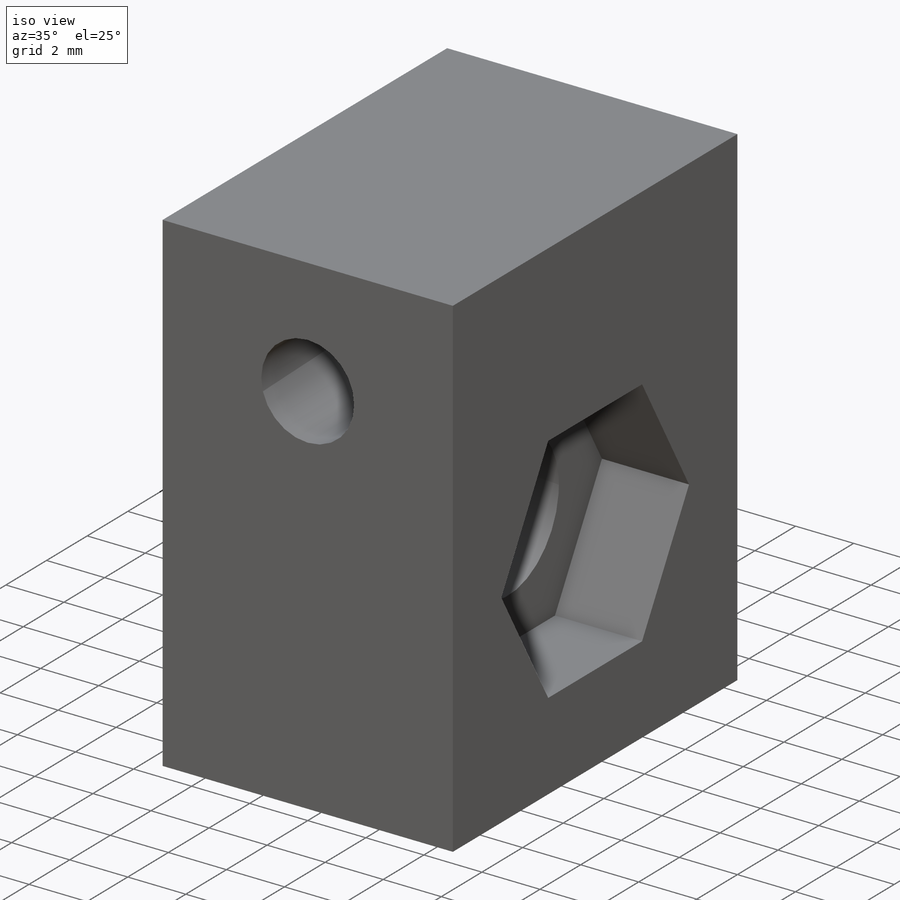
[diagram: iso view]
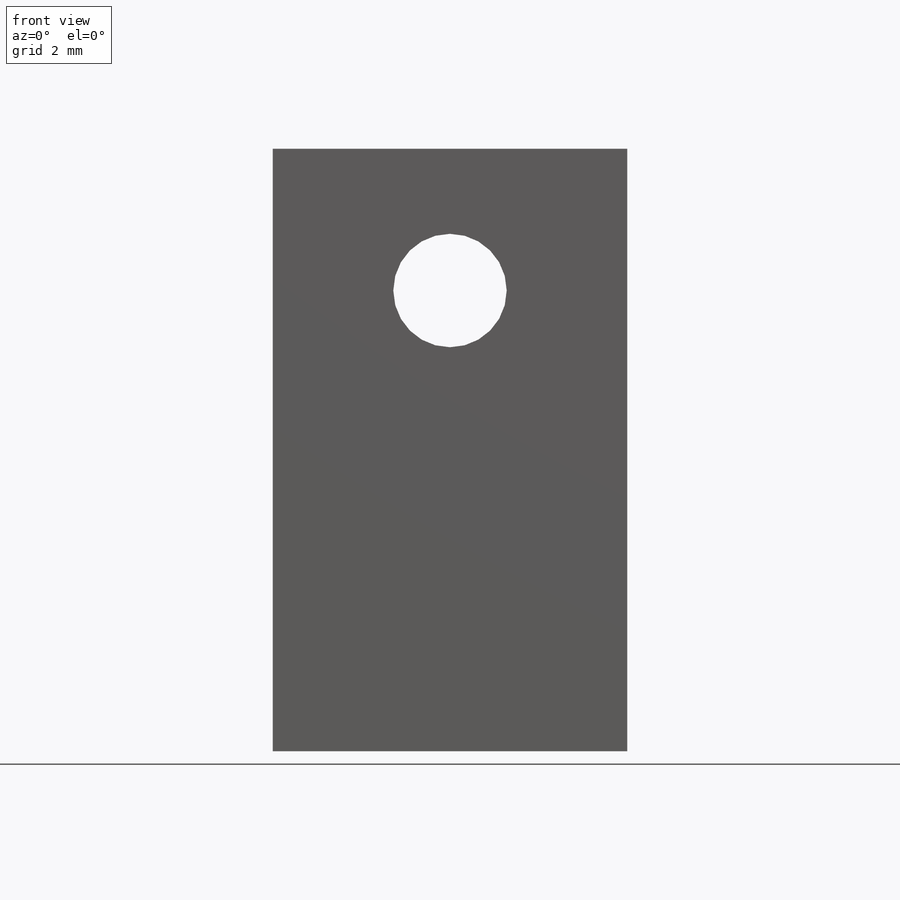
[diagram: front view]
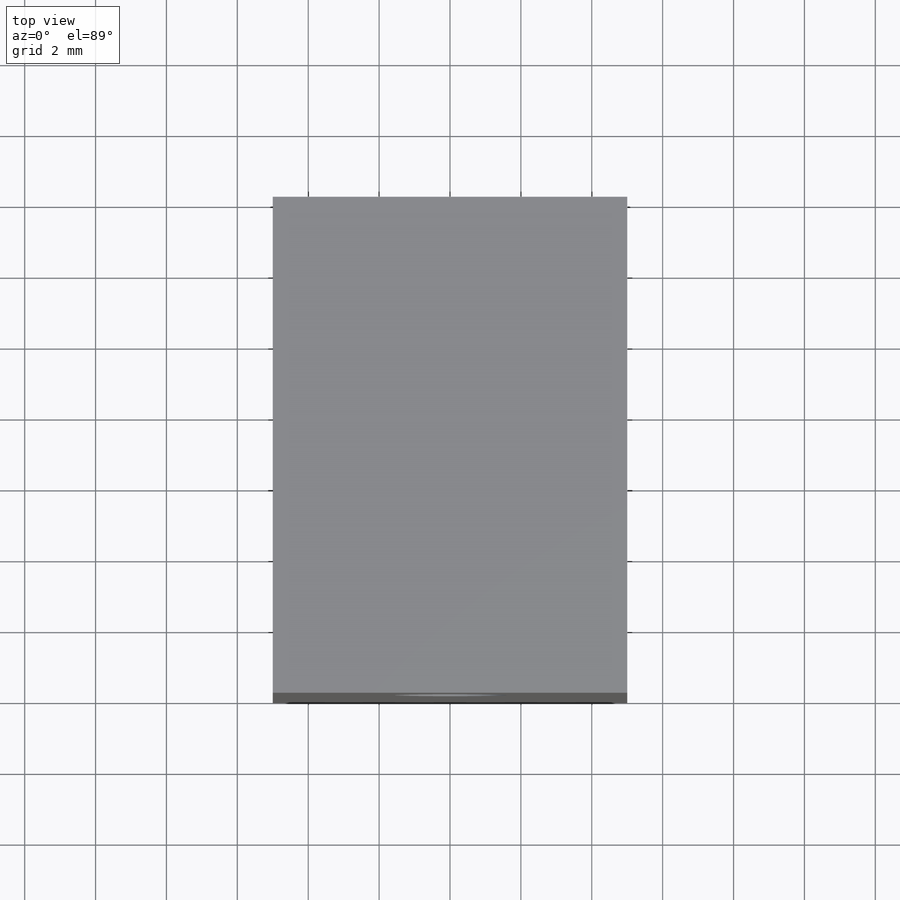
[diagram: top view]
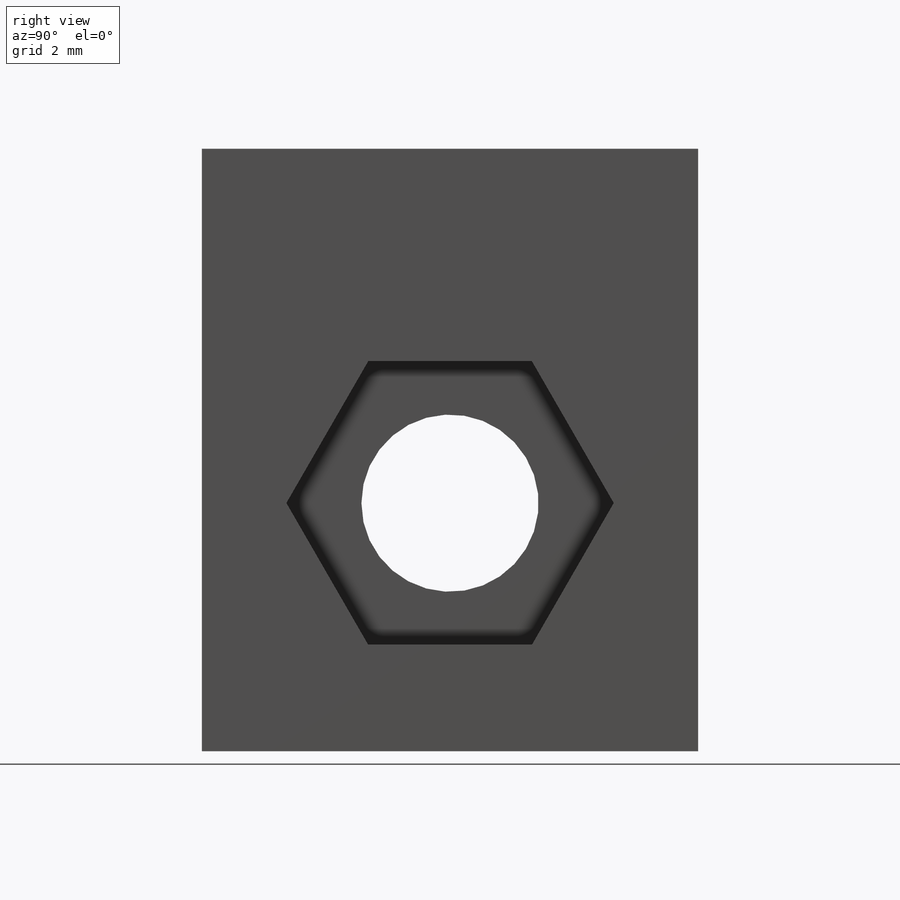
[diagram: right view]
SOLIDWORKS PART (.sldprt)
format: sldprt  version: not decoded by parser v0  size: 208,384 bytes
history: native  units: mm
features: sketch x4, cut_extrude x3, material x1, extrude x1, mirror x1 (+16 scaffold rows collapsed)
feature tree (26):
  scaffold x16  (default folders/planes/origin — collapsed)
  material  "Material <not specified>"
  sketch  "Sketch1"  dims[D1=17.0mm D2=10.0mm]
  extrude  "Boss-Extrude1"  Depth=14mm
  sketch  "Sketch2"  dims[c1.D1=3.2mm c1.D2=4.0mm c1.D3=5.0mm c2.D2=4.0mm c2.D4=10.0mm]
  cut_extrude  "Cut-Extrude1"  [1 undecoded]
  sketch  "Sketch3"  dims[D1=8.0mm D2=10.0mm D3=7.0mm]
  cut_extrude  "Cut-Extrude2"  Depth=3mm
  sketch  "Sketch5"  dims[D1=5.0mm]
  cut_extrude  "Cut-Extrude3"  [1 undecoded]
  mirror  "Mirror1"
decode coverage: 6 of 9 modeling features carry decoded parameters
note: 2 parameter values undecoded
note: suppression state not decoded; provenance and decode notes live in map.json
